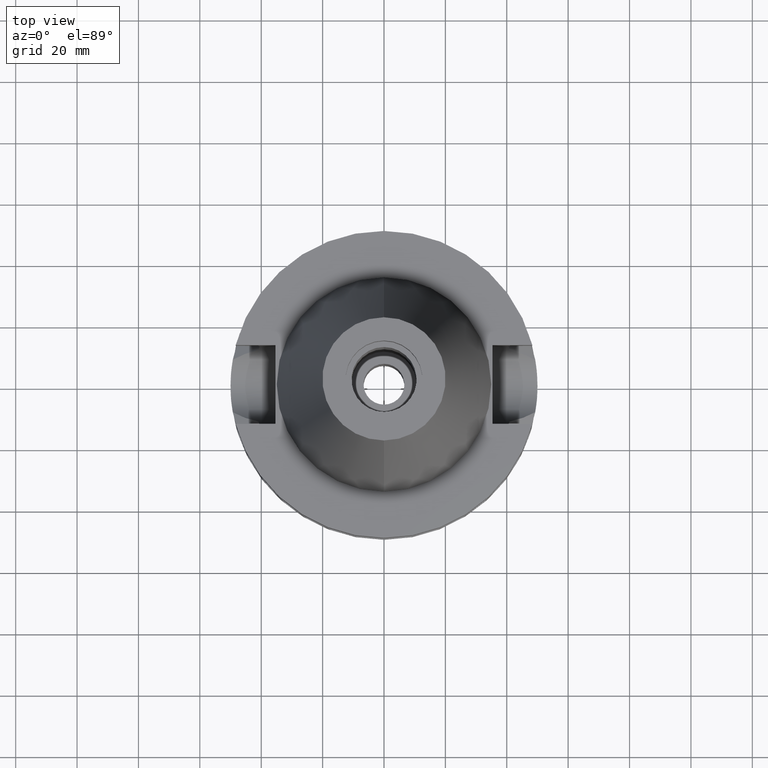
[diagram: clean part render]
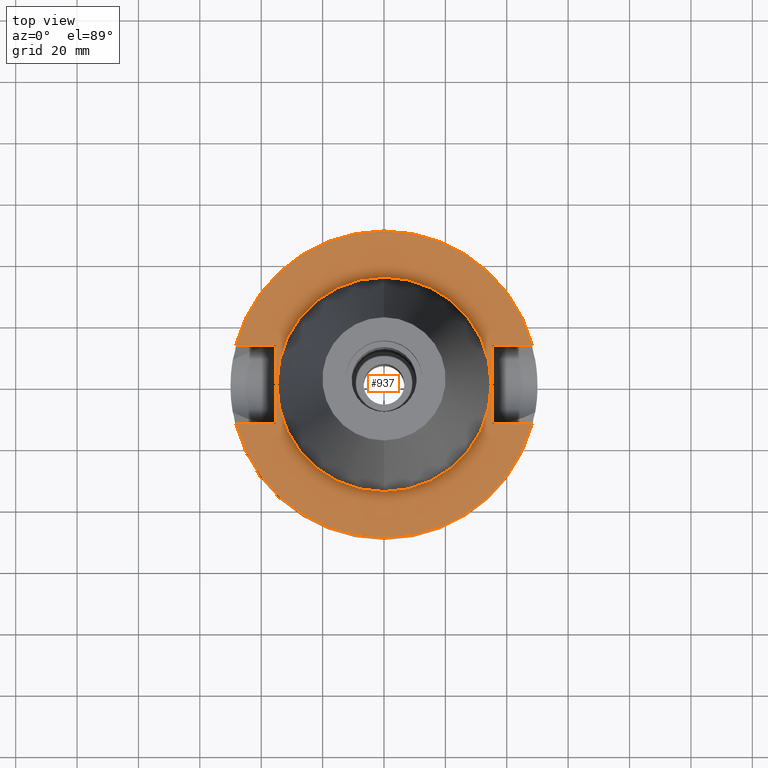
[diagram: same view with one face highlighted and labeled with its STEP entity id]
A machine part, top view. The second image highlights one B-rep face of the part: STEP entity #937.
In plain terms, the highlighted planar face has unit normal (0, 0, -1).
Its self-contained STEP definition (entity closure, byte-faithful):
#4 = VECTOR ( 'NONE', #2480, 1000.000000000000000 ) ;
#24 = EDGE_CURVE ( 'NONE', #3061, #1187, #1212, .T. ) ;
#34 = DIRECTION ( 'NONE',  ( -1.000000000000000000, 0.0000000000000000000, 0.0000000000000000000 ) ) ;
#50 = LINE ( 'NONE', #289, #1256 ) ;
#59 = CIRCLE ( 'NONE', #2600, 50.00000000000000000 ) ;
#112 = FACE_BOUND ( 'NONE', #914, .T. ) ;
#143 = CARTESIAN_POINT ( 'NONE',  ( 35.39999999999999858, 12.84999999999999964, -1.500000000000000000 ) ) ;
#148 = ORIENTED_EDGE ( 'NONE', *, *, #683, .F. ) ;
#220 = ORIENTED_EDGE ( 'NONE', *, *, #950, .F. ) ;
#289 = CARTESIAN_POINT ( 'NONE',  ( 35.39999999999999858, 12.84999999999999964, -1.500000000000000000 ) ) ;
#354 = DIRECTION ( 'NONE',  ( 1.000000000000000000, 0.0000000000000000000, 0.0000000000000000000 ) ) ;
#430 = AXIS2_PLACEMENT_3D ( 'NONE', #1716, #748, #1236 ) ;
#444 = VERTEX_POINT ( 'NONE', #745 ) ;
#488 = CARTESIAN_POINT ( 'NONE',  ( 0.0000000000000000000, 2.584188443221000028E-14, -1.500000000000000000 ) ) ;
#533 = LINE ( 'NONE', #1511, #4 ) ;
#550 = LINE ( 'NONE', #1326, #1313 ) ;
#589 = VECTOR ( 'NONE', #678, 1000.000000000000000 ) ;
#611 = EDGE_LOOP ( 'NONE', ( #2808, #2328, #2454, #220, #1966, #964, #1509, #2459 ) ) ;
#678 = DIRECTION ( 'NONE',  ( -1.000000000000000000, 0.0000000000000000000, 0.0000000000000000000 ) ) ;
#683 = EDGE_CURVE ( 'NONE', #2276, #1349, #2251, .T. ) ;
#687 = VERTEX_POINT ( 'NONE', #1129 ) ;
#710 = VERTEX_POINT ( 'NONE', #143 ) ;
#745 = CARTESIAN_POINT ( 'NONE',  ( 48.32057015392000210, -12.84999999999999964, -1.500000000000000000 ) ) ;
#748 = DIRECTION ( 'NONE',  ( 0.0000000000000000000, 0.0000000000000000000, -1.000000000000000000 ) ) ;
#765 = CARTESIAN_POINT ( 'NONE',  ( 0.0000000000000000000, -34.92499999999999716, -1.500000000000000000 ) ) ;
#807 = LINE ( 'NONE', #1759, #2770 ) ;
#847 = CIRCLE ( 'NONE', #430, 50.00000000000000000 ) ;
#863 = CARTESIAN_POINT ( 'NONE',  ( -35.39999999999999858, -12.84999999999999964, -1.500000000000000000 ) ) ;
#897 = CIRCLE ( 'NONE', #3070, 34.92499999999999716 ) ;
#910 = CARTESIAN_POINT ( 'NONE',  ( -48.32057015392000210, -12.84999999999999964, -1.500000000000000000 ) ) ;
#914 = EDGE_LOOP ( 'NONE', ( #148, #2399 ) ) ;
#924 = DIRECTION ( 'NONE',  ( 0.0000000000000000000, 0.0000000000000000000, -1.000000000000000000 ) ) ;
#937 = ADVANCED_FACE ( 'NONE', ( #1969, #112 ), #1070, .F. ) ;
#950 = EDGE_CURVE ( 'NONE', #710, #1576, #50, .T. ) ;
#964 = ORIENTED_EDGE ( 'NONE', *, *, #1317, .F. ) ;
#997 = DIRECTION ( 'NONE',  ( 0.0000000000000000000, -1.000000000000000000, 0.0000000000000000000 ) ) ;
#1033 = DIRECTION ( 'NONE',  ( 0.0000000000000000000, -1.000000000000000000, 0.0000000000000000000 ) ) ;
#1070 = PLANE ( 'NONE',  #2765 ) ;
#1103 = DIRECTION ( 'NONE',  ( 1.000000000000000000, 0.0000000000000000000, 0.0000000000000000000 ) ) ;
#1109 = EDGE_CURVE ( 'NONE', #687, #2613, #3107, .T. ) ;
#1129 = CARTESIAN_POINT ( 'NONE',  ( -35.39999999999999858, 12.84999999999999964, -1.500000000000000000 ) ) ;
#1177 = EDGE_CURVE ( 'NONE', #444, #1187, #59, .T. ) ;
#1187 = VERTEX_POINT ( 'NONE', #910 ) ;
#1203 = VECTOR ( 'NONE', #34, 1000.000000000000000 ) ;
#1212 = LINE ( 'NONE', #2404, #1203 ) ;
#1236 = DIRECTION ( 'NONE',  ( 0.0000000000000000000, 1.000000000000000000, 0.0000000000000000000 ) ) ;
#1256 = VECTOR ( 'NONE', #997, 1000.000000000000000 ) ;
#1288 = DIRECTION ( 'NONE',  ( 0.0000000000000000000, 0.0000000000000000000, 1.000000000000000000 ) ) ;
#1313 = VECTOR ( 'NONE', #1103, 1000.000000000000000 ) ;
#1317 = EDGE_CURVE ( 'NONE', #2613, #1625, #847, .T. ) ;
#1326 = CARTESIAN_POINT ( 'NONE',  ( 35.39999999999999858, -12.84999999999999964, -1.500000000000000000 ) ) ;
#1342 = CARTESIAN_POINT ( 'NONE',  ( 35.39999999999999858, -12.84999999999999964, -1.500000000000000000 ) ) ;
#1344 = EDGE_CURVE ( 'NONE', #1349, #2276, #897, .T. ) ;
#1349 = VERTEX_POINT ( 'NONE', #765 ) ;
#1382 = CARTESIAN_POINT ( 'NONE',  ( -35.39999999999999858, 12.84999999999999964, -1.500000000000000000 ) ) ;
#1509 = ORIENTED_EDGE ( 'NONE', *, *, #1109, .F. ) ;
#1511 = CARTESIAN_POINT ( 'NONE',  ( -35.39999999999999858, -12.84999999999999964, -1.500000000000000000 ) ) ;
#1576 = VERTEX_POINT ( 'NONE', #1342 ) ;
#1583 = DIRECTION ( 'NONE',  ( 0.0000000000000000000, 1.000000000000000000, 0.0000000000000000000 ) ) ;
#1625 = VERTEX_POINT ( 'NONE', #1642 ) ;
#1642 = CARTESIAN_POINT ( 'NONE',  ( 48.32057015392000210, 12.84999999999999964, -1.500000000000000000 ) ) ;
#1716 = CARTESIAN_POINT ( 'NONE',  ( 0.0000000000000000000, 2.584188443221000028E-14, -1.500000000000000000 ) ) ;
#1759 = CARTESIAN_POINT ( 'NONE',  ( 35.39999999999999858, 12.84999999999999964, -1.500000000000000000 ) ) ;
#1796 = CARTESIAN_POINT ( 'NONE',  ( -48.32057015392000210, 12.84999999999999964, -1.500000000000000000 ) ) ;
#1929 = EDGE_CURVE ( 'NONE', #3061, #687, #533, .T. ) ;
#1966 = ORIENTED_EDGE ( 'NONE', *, *, #2513, .T. ) ;
#1969 = FACE_OUTER_BOUND ( 'NONE', #611, .T. ) ;
#2084 = CARTESIAN_POINT ( 'NONE',  ( 0.0000000000000000000, 2.584188443221000028E-14, -1.500000000000000000 ) ) ;
#2251 = CIRCLE ( 'NONE', #2906, 34.92499999999999716 ) ;
#2276 = VERTEX_POINT ( 'NONE', #2887 ) ;
#2328 = ORIENTED_EDGE ( 'NONE', *, *, #1177, .F. ) ;
#2399 = ORIENTED_EDGE ( 'NONE', *, *, #1344, .F. ) ;
#2404 = CARTESIAN_POINT ( 'NONE',  ( -35.39999999999999858, -12.84999999999999964, -1.500000000000000000 ) ) ;
#2442 = DIRECTION ( 'NONE',  ( 0.0000000000000000000, 0.0000000000000000000, -1.000000000000000000 ) ) ;
#2454 = ORIENTED_EDGE ( 'NONE', *, *, #2537, .F. ) ;
#2459 = ORIENTED_EDGE ( 'NONE', *, *, #1929, .F. ) ;
#2480 = DIRECTION ( 'NONE',  ( 0.0000000000000000000, 1.000000000000000000, 0.0000000000000000000 ) ) ;
#2513 = EDGE_CURVE ( 'NONE', #710, #1625, #807, .T. ) ;
#2536 = CARTESIAN_POINT ( 'NONE',  ( 0.0000000000000000000, 2.584188443221000028E-14, -1.500000000000000000 ) ) ;
#2537 = EDGE_CURVE ( 'NONE', #1576, #444, #550, .T. ) ;
#2600 = AXIS2_PLACEMENT_3D ( 'NONE', #2084, #924, #3082 ) ;
#2613 = VERTEX_POINT ( 'NONE', #1796 ) ;
#2765 = AXIS2_PLACEMENT_3D ( 'NONE', #2992, #2442, #1033 ) ;
#2770 = VECTOR ( 'NONE', #354, 1000.000000000000000 ) ;
#2808 = ORIENTED_EDGE ( 'NONE', *, *, #24, .T. ) ;
#2887 = CARTESIAN_POINT ( 'NONE',  ( 0.0000000000000000000, 34.92499999999999716, -1.500000000000000000 ) ) ;
#2906 = AXIS2_PLACEMENT_3D ( 'NONE', #2536, #3080, #1583 ) ;
#2936 = DIRECTION ( 'NONE',  ( 0.0000000000000000000, -1.000000000000000000, 0.0000000000000000000 ) ) ;
#2992 = CARTESIAN_POINT ( 'NONE',  ( 0.0000000000000000000, 1.206277097159999845E-14, -1.500000000000000000 ) ) ;
#3061 = VERTEX_POINT ( 'NONE', #863 ) ;
#3070 = AXIS2_PLACEMENT_3D ( 'NONE', #488, #1288, #2936 ) ;
#3080 = DIRECTION ( 'NONE',  ( 0.0000000000000000000, 0.0000000000000000000, 1.000000000000000000 ) ) ;
#3082 = DIRECTION ( 'NONE',  ( 0.0000000000000000000, -1.000000000000000000, 0.0000000000000000000 ) ) ;
#3107 = LINE ( 'NONE', #1382, #589 ) ;